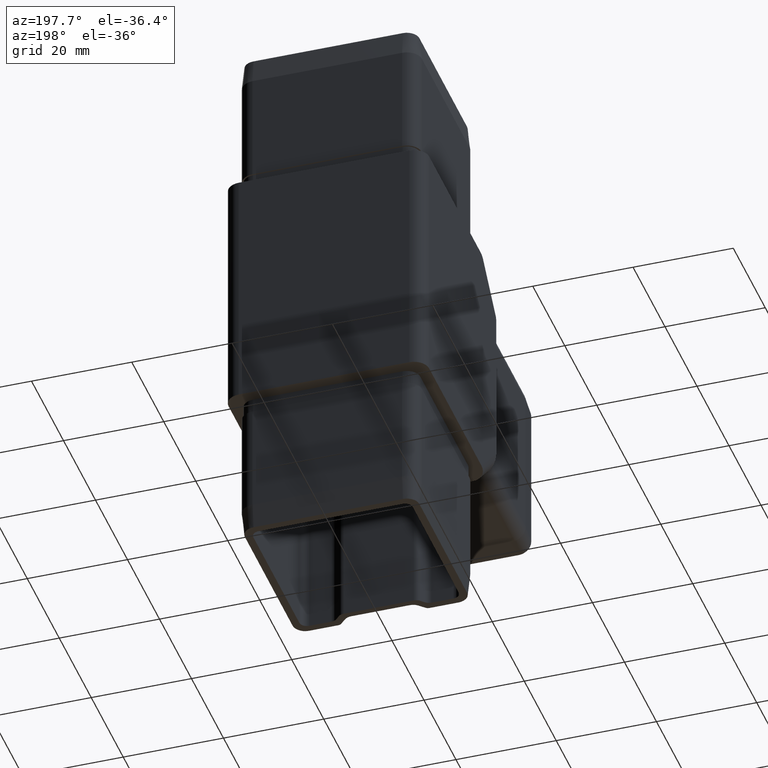
[diagram: clean part render]
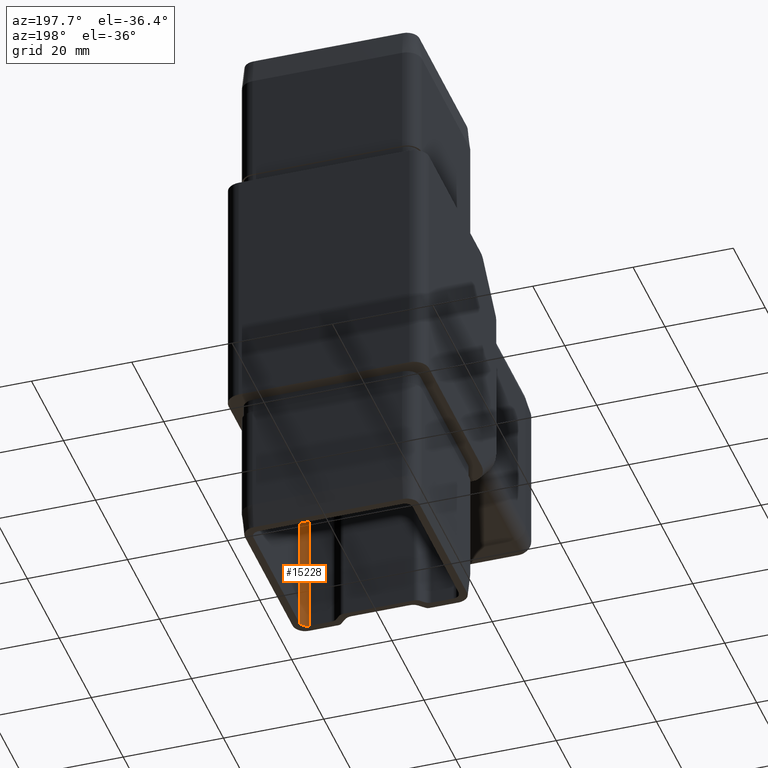
[diagram: same view with one face highlighted and labeled with its STEP entity id]
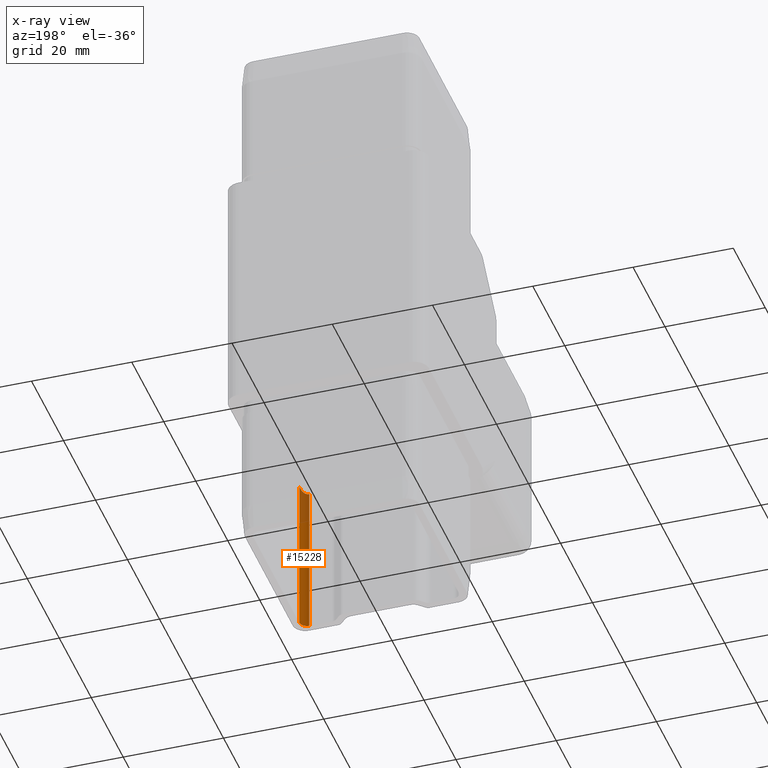
[diagram: x-ray of the same camera — body ghosted, the highlighted face saturated]
A machine part, auxiliary view. The second image highlights one B-rep face of the part: STEP entity #15228.
The next image is the same camera in x-ray: the body ghosted, the highlighted face saturated — about 23% of this face is hidden behind the body in this view.
In plain terms, the highlighted cylindrical surface (edge-blend (fillet) strip) has radius 1.5 mm, axis along (0, 0, -1).
Its self-contained STEP definition (entity closure, byte-faithful):
#157 = CARTESIAN_POINT ( 'NONE',  ( 14.40000000000000400, -13.39999999999999300, -55.00000000000000000 ) ) ;
#237 = CARTESIAN_POINT ( 'NONE',  ( 15.90000000000000400, -11.89999999999999300, -21.18040405071065600 ) ) ;
#668 = FACE_OUTER_BOUND ( 'NONE', #18833, .T. ) ;
#1195 = CARTESIAN_POINT ( 'NONE',  ( 14.40000000000000400, -11.89999999999999300, 25.00000000000000000 ) ) ;
#1437 = DIRECTION ( 'NONE',  ( 0.0000000000000000000, -0.0000000000000000000, -1.000000000000000000 ) ) ;
#1918 = CARTESIAN_POINT ( 'NONE',  ( 15.90000000000000700, -11.89999999999999300, -55.00000000000000000 ) ) ;
#2751 = CARTESIAN_POINT ( 'NONE',  ( 15.90000000000000400, -12.77867965644035100, -23.40832611206850800 ) ) ;
#3201 = VERTEX_POINT ( 'NONE', #3813 ) ;
#3311 = EDGE_CURVE ( 'NONE', #8448, #6578, #9598, .T. ) ;
#3813 = CARTESIAN_POINT ( 'NONE',  ( 14.40000000000000400, -13.39999999999999300, -23.92304473782993700 ) ) ;
#4197 = CARTESIAN_POINT ( 'NONE',  ( 15.27867965644035800, -13.39999999999999300, -23.92304473782994000 ) ) ;
#4845 = EDGE_CURVE ( 'NONE', #3201, #8448, #10245, .T. ) ;
#5336 = CYLINDRICAL_SURFACE ( 'NONE', #7220, 1.499999999999999600 ) ;
#6330 =( BOUNDED_CURVE ( )  B_SPLINE_CURVE ( 3, ( #15936, #4197, #2751, #13013 ),
 .UNSPECIFIED., .F., .T. ) 
 B_SPLINE_CURVE_WITH_KNOTS ( ( 4, 4 ),
 ( 0.0000000000000000000, 1.570796326794896600 ),
 .UNSPECIFIED. ) 
 CURVE ( )  GEOMETRIC_REPRESENTATION_ITEM ( )  RATIONAL_B_SPLINE_CURVE ( ( 1.000000000000000000, 0.8047378541243649400, 0.8047378541243649400, 1.000000000000000000 ) ) 
 REPRESENTATION_ITEM ( '' )  );
#6578 = VERTEX_POINT ( 'NONE', #1918 ) ;
#6626 = DIRECTION ( 'NONE',  ( 0.0000000000000000000, 0.0000000000000000000, 1.000000000000000000 ) ) ;
#7220 = AXIS2_PLACEMENT_3D ( 'NONE', #1195, #7318, #19208 ) ;
#7309 = VERTEX_POINT ( 'NONE', #18876 ) ;
#7318 = DIRECTION ( 'NONE',  ( 0.0000000000000000000, 0.0000000000000000000, -1.000000000000000000 ) ) ;
#7330 = CARTESIAN_POINT ( 'NONE',  ( 14.40000000000000400, -11.89999999999999300, -55.00000000000000000 ) ) ;
#7700 = VECTOR ( 'NONE', #1437, 1000.000000000000000 ) ;
#8351 = VECTOR ( 'NONE', #6626, 1000.000000000000000 ) ;
#8448 = VERTEX_POINT ( 'NONE', #12605 ) ;
#8582 = ORIENTED_EDGE ( 'NONE', *, *, #13248, .F. ) ;
#8596 = DIRECTION ( 'NONE',  ( -1.000000000000000000, 0.0000000000000000000, 0.0000000000000000000 ) ) ;
#9598 = CIRCLE ( 'NONE', #12951, 1.499999999999999600 ) ;
#10181 = ORIENTED_EDGE ( 'NONE', *, *, #4845, .F. ) ;
#10245 = LINE ( 'NONE', #157, #7700 ) ;
#11510 = ORIENTED_EDGE ( 'NONE', *, *, #12762, .T. ) ;
#12605 = CARTESIAN_POINT ( 'NONE',  ( 14.40000000000000400, -13.39999999999999300, -55.00000000000000000 ) ) ;
#12762 = EDGE_CURVE ( 'NONE', #3201, #7309, #6330, .T. ) ;
#12951 = AXIS2_PLACEMENT_3D ( 'NONE', #7330, #15926, #8596 ) ;
#13013 = CARTESIAN_POINT ( 'NONE',  ( 15.90000000000000400, -11.89999999999999300, -22.68040405071065300 ) ) ;
#13248 = EDGE_CURVE ( 'NONE', #6578, #7309, #13480, .T. ) ;
#13480 = LINE ( 'NONE', #237, #8351 ) ;
#14911 = ORIENTED_EDGE ( 'NONE', *, *, #3311, .F. ) ;
#15228 = ADVANCED_FACE ( 'NONE', ( #668 ), #5336, .F. ) ;
#15926 = DIRECTION ( 'NONE',  ( -0.0000000000000000000, -0.0000000000000000000, 1.000000000000000000 ) ) ;
#15936 = CARTESIAN_POINT ( 'NONE',  ( 14.40000000000000400, -13.39999999999999300, -23.92304473782993700 ) ) ;
#18833 = EDGE_LOOP ( 'NONE', ( #10181, #11510, #8582, #14911 ) ) ;
#18876 = CARTESIAN_POINT ( 'NONE',  ( 15.90000000000000400, -11.89999999999999300, -22.68040405071065300 ) ) ;
#19208 = DIRECTION ( 'NONE',  ( -1.000000000000000000, 0.0000000000000000000, 0.0000000000000000000 ) ) ;